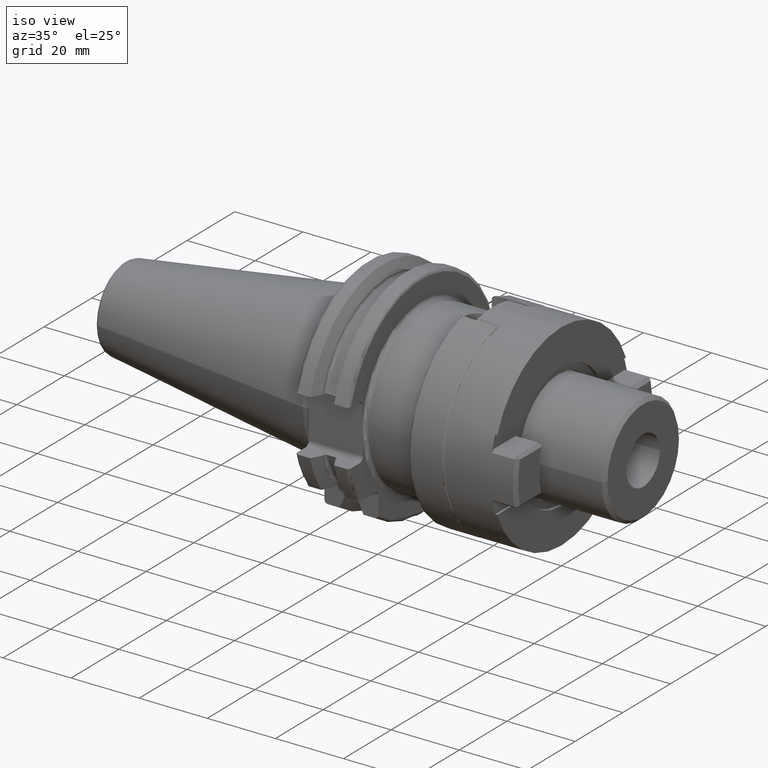
[diagram: clean part render]
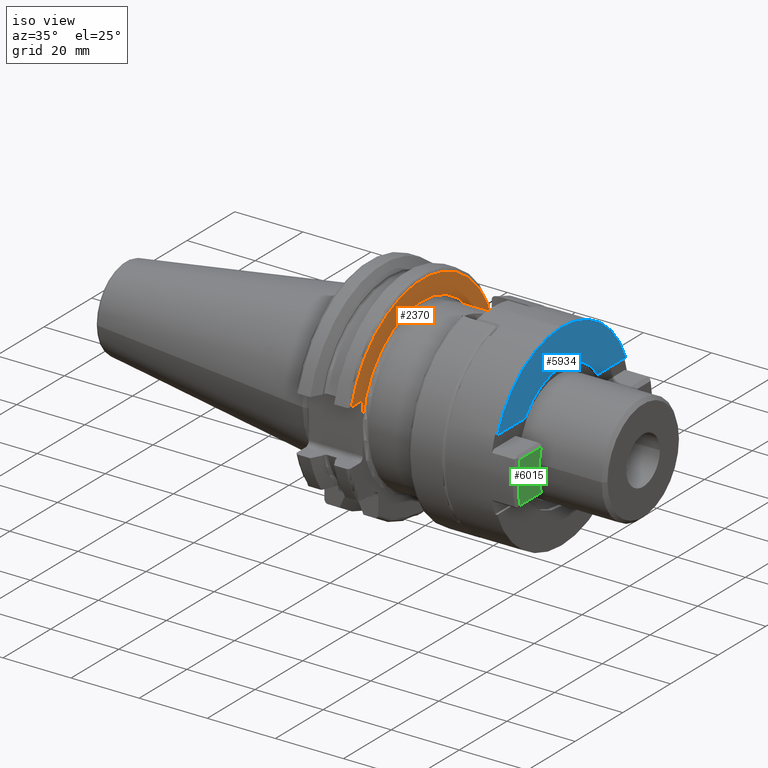
[diagram: same view with three faces highlighted in distinct colors, each labeled with its STEP entity id]
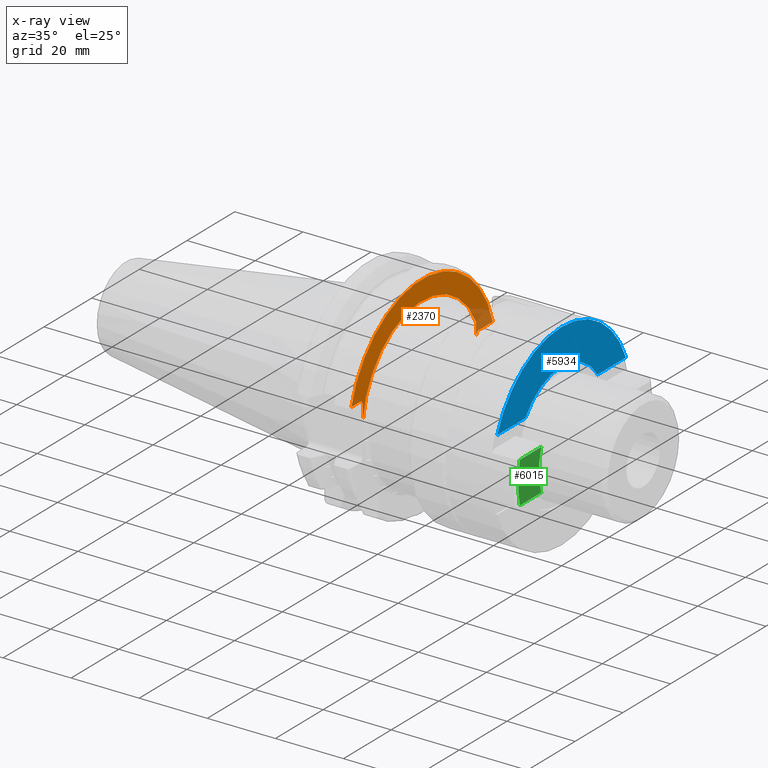
[diagram: x-ray of the same camera — body ghosted, the three highlighted faces saturated]
A machine part, iso view with three faces highlighted in distinct colors.
The next image is the same camera in x-ray (body ghosted, the three faces saturated) — at least one of them is partly hidden behind the body in this view.
Their STEP definitions:

[orange] entity #2370 — the highlighted planar face has unit normal (1, 0, 0).
#134=DIRECTION('',(0.E0,0.E0,1.E0));
#135=VECTOR('',#134,4.043400761576E0);
#136=CARTESIAN_POINT('',(1.905E1,2.255E1,6.75E0));
#137=LINE('',#136,#135);
#147=CARTESIAN_POINT('',(1.905E1,2.39E1,6.75E0));
#148=DIRECTION('',(1.E0,0.E0,0.E0));
#149=DIRECTION('',(0.E0,0.E0,1.E0));
#150=AXIS2_PLACEMENT_3D('',#147,#148,#149);
#152=CARTESIAN_POINT('',(1.905E1,0.E0,0.E0));
#153=DIRECTION('',(1.E0,0.E0,0.E0));
#154=DIRECTION('',(0.E0,9.02E-1,4.317360304631E-1));
#155=AXIS2_PLACEMENT_3D('',#152,#153,#154);
#157=DIRECTION('',(0.E0,-2.895756252158E-6,9.999999999958E-1));
#158=VECTOR('',#157,4.017573083721E0);
#159=CARTESIAN_POINT('',(1.905E1,-2.484998836609E1,2.732426916296E0));
#160=LINE('',#159,#158);
#161=DIRECTION('',(0.E0,1.E0,0.E0));
#162=VECTOR('',#161,3.476950757280E0);
#163=CARTESIAN_POINT('',(1.905E1,-2.967695075728E1,8.1E0));
#164=LINE('',#163,#162);
#165=DIRECTION('',(0.E0,-1.E0,0.E0));
#166=VECTOR('',#165,5.776950757280E0);
#167=CARTESIAN_POINT('',(1.905E1,2.967695075728E1,8.1E0));
#168=LINE('',#167,#166);
#208=CARTESIAN_POINT('',(1.905E1,2.967695075728E1,8.1E0));
#219=CARTESIAN_POINT('',(1.905E1,0.E0,0.E0));
#220=DIRECTION('',(1.E0,0.E0,0.E0));
#221=DIRECTION('',(0.E0,9.647119303464E-1,2.633075985372E-1));
#222=AXIS2_PLACEMENT_3D('',#219,#220,#221);
#233=CARTESIAN_POINT('',(1.905E1,-2.967695075728E1,8.1E0));
#239=CARTESIAN_POINT('',(1.905E1,-2.62E1,6.75E0));
#240=DIRECTION('',(-1.E0,0.E0,0.E0));
#241=DIRECTION('',(0.E0,0.E0,1.E0));
#242=AXIS2_PLACEMENT_3D('',#239,#240,#241);
#297=CARTESIAN_POINT('',(1.905E1,2.255E1,1.079340076158E1));
#1955=VERTEX_POINT('',#208);
#1956=VERTEX_POINT('',#233);
#1983=CARTESIAN_POINT('',(1.905E1,2.39E1,8.1E0));
#1985=VERTEX_POINT('',#1983);
#1995=CARTESIAN_POINT('',(1.905E1,-2.62E1,8.1E0));
#1997=VERTEX_POINT('',#1995);
#1999=CARTESIAN_POINT('',(1.905E1,-2.485E1,6.75E0));
#2001=VERTEX_POINT('',#1999);
#2085=CARTESIAN_POINT('',(1.905E1,-2.484998836609E1,2.732426916296E0));
#2086=VERTEX_POINT('',#2085);
#2140=VERTEX_POINT('',#297);
#2143=CARTESIAN_POINT('',(1.905E1,2.255E1,6.75E0));
#2144=VERTEX_POINT('',#2143);
#2348=CARTESIAN_POINT('',(1.905E1,0.E0,0.E0));
#2349=DIRECTION('',(1.E0,0.E0,0.E0));
#2350=DIRECTION('',(0.E0,-1.E0,0.E0));
#2351=AXIS2_PLACEMENT_3D('',#2348,#2349,#2350);
#2352=PLANE('',#2351);
#2354=ORIENTED_EDGE('',*,*,#2353,.T.);
#2355=ORIENTED_EDGE('',*,*,#2319,.T.);
#2357=ORIENTED_EDGE('',*,*,#2356,.T.);
#2359=ORIENTED_EDGE('',*,*,#2358,.T.);
#2361=ORIENTED_EDGE('',*,*,#2360,.F.);
#2363=ORIENTED_EDGE('',*,*,#2362,.F.);
#2365=ORIENTED_EDGE('',*,*,#2364,.F.);
#2367=ORIENTED_EDGE('',*,*,#2366,.T.);
#2368=EDGE_LOOP('',(#2354,#2355,#2357,#2359,#2361,#2363,#2365,#2367));
#2369=FACE_OUTER_BOUND('',#2368,.F.);
#2370=ADVANCED_FACE('',(#2369),#2352,.T.);
#151=CIRCLE('',#150,1.35E0);
#156=CIRCLE('',#155,2.5E1);
#223=CIRCLE('',#222,3.07625E1);
#243=CIRCLE('',#242,1.35E0);
#2319=EDGE_CURVE('',#2144,#2140,#137,.T.);
#2353=EDGE_CURVE('',#1985,#2144,#151,.T.);
#2356=EDGE_CURVE('',#2140,#2086,#156,.T.);
#2358=EDGE_CURVE('',#2086,#2001,#160,.T.);
#2360=EDGE_CURVE('',#1997,#2001,#243,.T.);
#2362=EDGE_CURVE('',#1956,#1997,#164,.T.);
#2364=EDGE_CURVE('',#1955,#1956,#223,.T.);
#2366=EDGE_CURVE('',#1955,#1985,#168,.T.);

[blue] entity #5934 — the highlighted planar face has unit normal (-1, 0, 0).
#4381=CARTESIAN_POINT('',(0.E0,1.4E1,0.E0));
#4382=DIRECTION('',(0.E0,1.E0,0.E0));
#4383=DIRECTION('',(-3.645689655172E-1,0.E0,-9.311763900474E-1));
#4384=AXIS2_PLACEMENT_3D('',#4381,#4382,#4383);
#4610=CARTESIAN_POINT('',(0.E0,1.4E1,0.E0));
#4611=DIRECTION('',(0.E0,1.E0,0.E0));
#4612=DIRECTION('',(-1.E0,0.E0,0.E0));
#4613=AXIS2_PLACEMENT_3D('',#4610,#4611,#4612);
#4658=CARTESIAN_POINT('',(0.E0,1.4E1,0.E0));
#4659=DIRECTION('',(0.E0,1.E0,0.E0));
#4660=DIRECTION('',(-1.E0,0.E0,0.E0));
#4661=AXIS2_PLACEMENT_3D('',#4658,#4659,#4660);
#4663=CARTESIAN_POINT('',(0.E0,1.4E1,0.E0));
#4664=DIRECTION('',(0.E0,1.E0,0.E0));
#4665=DIRECTION('',(-5.714864864865E-1,0.E0,-8.206114767436E-1));
#4666=AXIS2_PLACEMENT_3D('',#4663,#4664,#4665);
#4959=DIRECTION('',(0.E0,0.E0,1.E0));
#4960=VECTOR('',#4959,1.182280299162E1);
#4961=CARTESIAN_POINT('',(-1.05725E1,1.4E1,1.518131231976E1));
#4962=LINE('',#4961,#4960);
#4967=DIRECTION('',(0.E0,0.E0,1.E0));
#4968=VECTOR('',#4967,1.182280299162E1);
#4969=CARTESIAN_POINT('',(-1.05725E1,1.4E1,-2.700411531137E1));
#4970=LINE('',#4969,#4968);
#5268=CARTESIAN_POINT('',(-1.05725E1,1.4E1,-2.700411531137E1));
#5269=CARTESIAN_POINT('',(-2.9E1,1.4E1,0.E0));
#5270=VERTEX_POINT('',#5268);
#5271=VERTEX_POINT('',#5269);
#5274=CARTESIAN_POINT('',(-1.05725E1,1.4E1,2.700411531137E1));
#5275=VERTEX_POINT('',#5274);
#5290=CARTESIAN_POINT('',(-1.85E1,1.4E1,0.E0));
#5291=CARTESIAN_POINT('',(-1.05725E1,1.4E1,1.518131231976E1));
#5292=VERTEX_POINT('',#5290);
#5293=VERTEX_POINT('',#5291);
#5294=CARTESIAN_POINT('',(-1.05725E1,1.4E1,-1.518131231976E1));
#5295=VERTEX_POINT('',#5294);
#5917=CARTESIAN_POINT('',(-2.9E1,1.4E1,-3.482917893342E1));
#5918=DIRECTION('',(0.E0,-1.E0,0.E0));
#5919=DIRECTION('',(1.E0,0.E0,0.E0));
#5920=AXIS2_PLACEMENT_3D('',#5917,#5918,#5919);
#5921=PLANE('',#5920);
#5923=ORIENTED_EDGE('',*,*,#5922,.T.);
#5925=ORIENTED_EDGE('',*,*,#5924,.T.);
#5926=ORIENTED_EDGE('',*,*,#5881,.F.);
#5927=ORIENTED_EDGE('',*,*,#5638,.F.);
#5929=ORIENTED_EDGE('',*,*,#5928,.T.);
#5931=ORIENTED_EDGE('',*,*,#5930,.T.);
#5932=EDGE_LOOP('',(#5923,#5925,#5926,#5927,#5929,#5931));
#5933=FACE_OUTER_BOUND('',#5932,.F.);
#5934=ADVANCED_FACE('',(#5933),#5921,.F.);
#4385=CIRCLE('',#4384,2.9E1);
#4614=CIRCLE('',#4613,2.9E1);
#4662=CIRCLE('',#4661,1.85E1);
#4667=CIRCLE('',#4666,1.85E1);
#5638=EDGE_CURVE('',#5270,#5271,#4385,.T.);
#5881=EDGE_CURVE('',#5271,#5275,#4614,.T.);
#5922=EDGE_CURVE('',#5292,#5293,#4662,.T.);
#5924=EDGE_CURVE('',#5293,#5275,#4962,.T.);
#5928=EDGE_CURVE('',#5270,#5295,#4970,.T.);
#5930=EDGE_CURVE('',#5295,#5292,#4667,.T.);

[green] entity #6015 — the highlighted planar face has unit normal (1, 0, 0).
#4680=CARTESIAN_POINT('',(3.426375559189E-5,2.09625E1,1.905920927392E-5));
#4681=DIRECTION('',(0.E0,-1.E0,0.E0));
#4682=DIRECTION('',(3.130140239635E-1,0.E0,9.497485039747E-1));
#4683=AXIS2_PLACEMENT_3D('',#4680,#4681,#4682);
#4712=DIRECTION('',(1.006277388200E-7,-2.496200948755E-6,-9.999999999969E-1));
#4713=VECTOR('',#4712,9.010875166345E0);
#4714=CARTESIAN_POINT('',(6.072500015017E0,2.096251954812E1,2.743599275466E1));
#4715=LINE('',#4714,#4713);
#4716=DIRECTION('',(-1.771521820880E-6,-1.524998783820E-6,9.999999999973E-1));
#4717=VECTOR('',#4716,9.010878815318E0);
#4718=CARTESIAN_POINT('',(-6.072484021780E0,2.096251367100E1,1.842513284940E1));
#4719=LINE('',#4718,#4717);
#5069=CARTESIAN_POINT('',(7.102470092939E-6,2.09625E1,-2.878763164205E-5));
#5070=DIRECTION('',(0.E0,1.E0,0.E0));
#5071=DIRECTION('',(-2.161032292424E-1,0.E0,9.763705210170E-1));
#5072=AXIS2_PLACEMENT_3D('',#5069,#5070,#5071);
#5360=CARTESIAN_POINT('',(6.072502836190E0,2.09625E1,1.842512943949E1));
#5361=CARTESIAN_POINT('',(-6.072496367810E0,2.09625E1,1.842510898619E1));
#5362=VERTEX_POINT('',#5360);
#5363=VERTEX_POINT('',#5361);
#5368=CARTESIAN_POINT('',(-6.072499953521E0,2.09625E1,2.743601138133E1));
#5369=CARTESIAN_POINT('',(6.072500526917E0,2.09625E1,2.743601439844E1));
#5370=VERTEX_POINT('',#5368);
#5371=VERTEX_POINT('',#5369);
#6001=CARTESIAN_POINT('',(0.E0,2.09625E1,0.E0));
#6002=DIRECTION('',(0.E0,1.E0,0.E0));
#6003=DIRECTION('',(0.E0,0.E0,1.E0));
#6004=AXIS2_PLACEMENT_3D('',#6001,#6002,#6003);
#6005=PLANE('',#6004);
#6006=ORIENTED_EDGE('',*,*,#5971,.F.);
#6008=ORIENTED_EDGE('',*,*,#6007,.F.);
#6010=ORIENTED_EDGE('',*,*,#6009,.F.);
#6012=ORIENTED_EDGE('',*,*,#6011,.F.);
#6013=EDGE_LOOP('',(#6006,#6008,#6010,#6012));
#6014=FACE_OUTER_BOUND('',#6013,.F.);
#6015=ADVANCED_FACE('',(#6014),#6005,.T.);
#4684=CIRCLE('',#4683,1.939998884249E1);
#5073=CIRCLE('',#5072,2.810002921881E1);
#5971=EDGE_CURVE('',#5362,#5363,#4684,.T.);
#6007=EDGE_CURVE('',#5371,#5362,#4715,.T.);
#6009=EDGE_CURVE('',#5370,#5371,#5073,.T.);
#6011=EDGE_CURVE('',#5363,#5370,#4719,.T.);